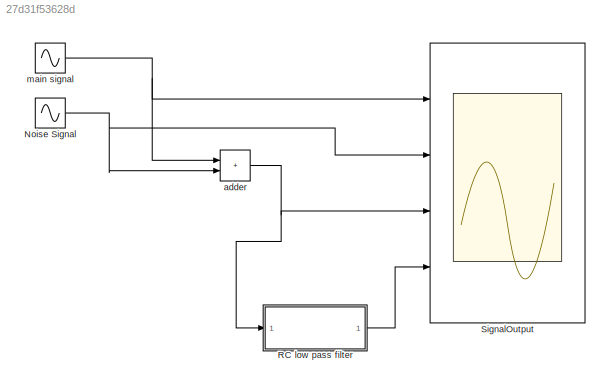
MODEL slx_27d31f53628d
KIND model
CONFIG AbsTol = auto
CONFIG EnableMultiTasking = off
CONFIG FixedStep = 0.001
CONFIG MaxStep = auto
CONFIG MinStep = auto
CONFIG RelTol = 1e-3
CONFIG SampleTimeConstraint = Unconstrained
CONFIG SolverName = FixedStepAuto
CONFIG StartTime = 0.0
CONFIG StopTime = 10
WORKSPACE source: mxarray member
WORKSPACE R = [1 0.5]
BLOCK [Sin] Noise Signal
  Amplitude = 5
  Frequency = 10
  Ports = [0, 1]
  SampleTime = 0
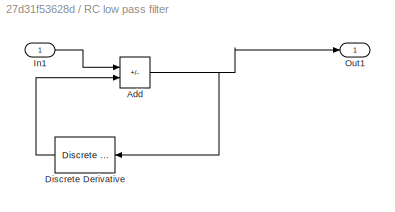
BLOCK [SubSystem] RC low pass filter
  Ports = [1, 1]
  RequestExecContextInheritance = off
BLOCK [Sum] RC low pass filter/Add
  IconShape = rectangular
  Inputs = +-
  Ports = [2, 1]
BLOCK [Reference] RC low pass filter/Discrete Derivative  REF=simulink/Discrete/Discrete Derivative
  Ports = [1, 1]
  SourceBlock = simulink/Discrete/Discrete Derivative
  SourceProductBaseCode = SL
  SourceType = Discrete Derivative
BLOCK [Inport] RC low pass filter/In1
BLOCK [Outport] RC low pass filter/Out1
BLOCK [Scope] SignalOutput
  Floating = off
  NumInputPorts = 4
  Ports = [4]
  ScopeSpecificationString = Simulink.scopes.TimeScopeBlockCfg('CurrentConfiguration', extmgr.ConfigurationSet(extmgr.Configuration('Core','General UI',true,'FigureColor',[0 0 0],'DisplayFullSourceName',true),extmgr.Configuration('Core','Source UI',true),extmgr.Configuration('Sources','WiredSimulink',true),extmgr.Configuration('Visuals','Time Domain',true,'SerializedDisplays',{struct('MinYLimReal','-68.05021','MaxYLimReal','6...<+1577ch>
BLOCK [Sum] adder
  IconShape = rectangular
  Ports = [2, 1]
BLOCK [Sin] main signal
  Amplitude = 50
  Ports = [0, 1]
  SampleTime = 0
NET Noise Signal:1 -> SignalOutput:2, adder:2
NET RC low pass filter/Add:1 -> RC low pass filter/Discrete Derivative:1, RC low pass filter/Out1:1
LINE RC low pass filter/Discrete Derivative:1 -> RC low pass filter/Add:2
LINE RC low pass filter/In1:1 -> RC low pass filter/Add:1
LINE RC low pass filter:1 -> SignalOutput:4
NET adder:1 -> RC low pass filter:1, SignalOutput:3
NET main signal:1 -> SignalOutput:1, adder:1
note: NET lines group one-source signal fan-out (src -> all destinations, sorted); 1:1 wires keep LINE
